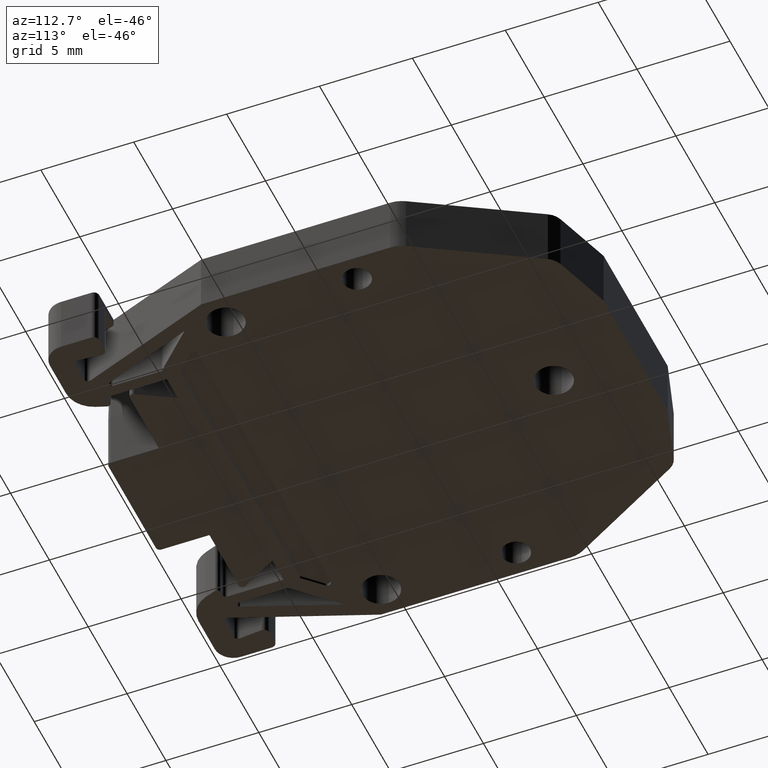
[diagram: clean part render]
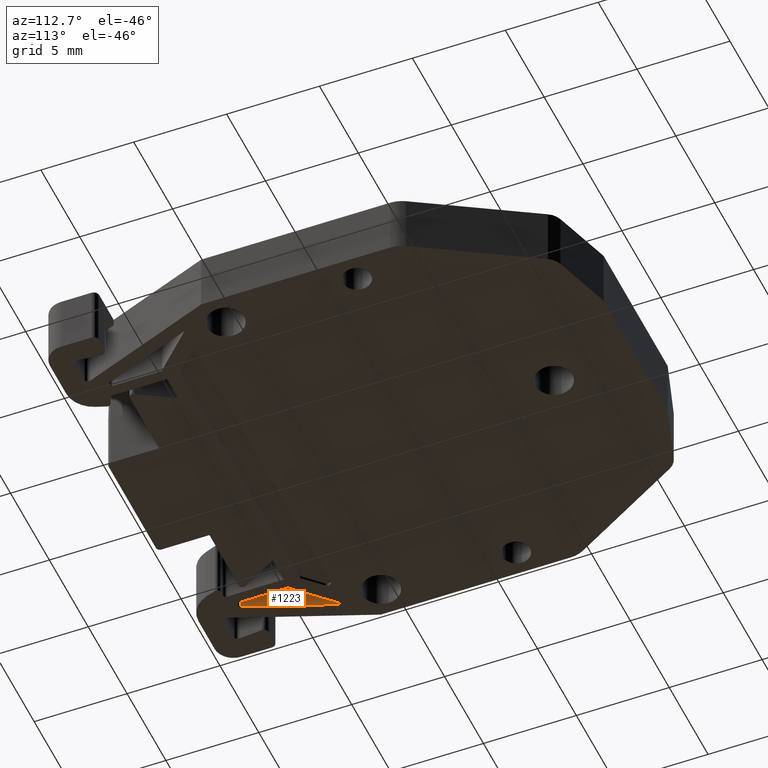
[diagram: same view with one face highlighted and labeled with its STEP entity id]
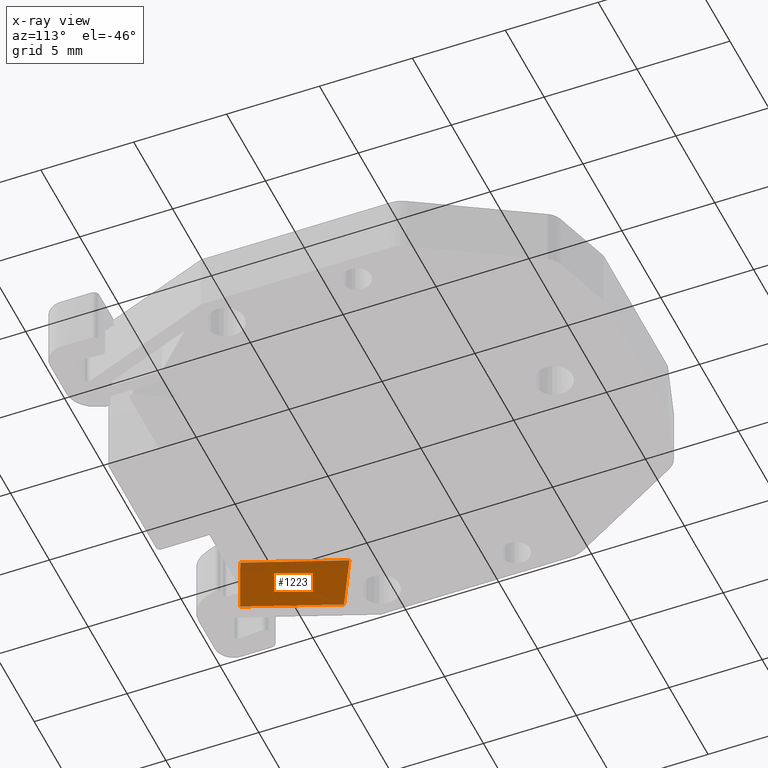
[diagram: x-ray of the same camera — body ghosted, the highlighted face saturated]
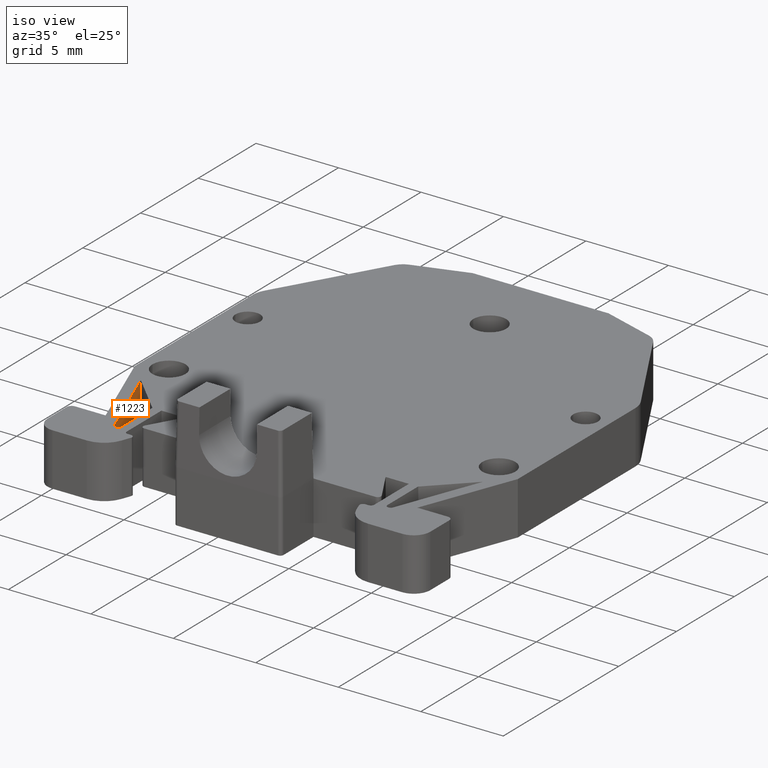
[diagram: same view with one face highlighted and labeled with its STEP entity id]
A machine part, auxiliary view. The second image highlights one B-rep face of the part: STEP entity #1223.
The next image is the same camera in x-ray: the body ghosted, the highlighted face saturated — about 17% of this face is hidden behind the body in this view.
A second angle (iso view) of the same face is appended — the face is thin or edge-on in the first view.
In plain terms, the highlighted planar face has unit normal (0.9334, 0.3585, 0.0175).
Its self-contained STEP definition (entity closure, byte-faithful):
#415 = DIRECTION ( 'NONE',  ( -0.3585440221142559000, 0.9335128195189029700, 0.0000000000000000000 ) ) ;
#422 = FACE_OUTER_BOUND ( 'NONE', #1690, .T. ) ;
#426 = PLANE ( 'NONE',  #1391 ) ;
#427 = CARTESIAN_POINT ( 'NONE',  ( 219.0861178392930200, 472.0378318790151300, 11.63999999999999900 ) ) ;
#428 = DIRECTION ( 'NONE',  ( 0.9333706409949194000, 0.3584894141230409700, 0.01745240643728353900 ) ) ;
#614 = CARTESIAN_POINT ( 'NONE',  ( 222.8875394312365200, 462.2961561982757000, 8.440000000003667700 ) ) ;
#649 = CARTESIAN_POINT ( 'NONE',  ( 222.8353969452330100, 462.2761292888816300, 11.63999999999987300 ) ) ;
#655 = CARTESIAN_POINT ( 'NONE',  ( 221.0368908867095600, 467.1145439949894500, 8.439999999999994200 ) ) ;
#678 = CARTESIAN_POINT ( 'NONE',  ( 220.8904854904031100, 467.3399419978671900, 11.63999999999999500 ) ) ;
#893 = EDGE_CURVE ( 'NONE', #1553, #1585, #3483, .T. ) ;
#991 = EDGE_CURVE ( 'NONE', #1607, #1610, #2801, .T. ) ;
#1074 = EDGE_CURVE ( 'NONE', #1610, #1553, #3029, .T. ) ;
#1083 = EDGE_CURVE ( 'NONE', #1607, #1585, #3073, .T. ) ;
#1223 = ADVANCED_FACE ( 'NONE', ( #422 ), #426, .T. ) ;
#1391 = AXIS2_PLACEMENT_3D ( 'NONE', #427, #428, #415 ) ;
#1553 = VERTEX_POINT ( 'NONE', #614 ) ;
#1585 = VERTEX_POINT ( 'NONE', #655 ) ;
#1607 = VERTEX_POINT ( 'NONE', #678 ) ;
#1610 = VERTEX_POINT ( 'NONE', #649 ) ;
#1690 = EDGE_LOOP ( 'NONE', ( #2077, #2097, #2103, #2128 ) ) ;
#2077 = ORIENTED_EDGE ( 'NONE', *, *, #1074, .T. ) ;
#2097 = ORIENTED_EDGE ( 'NONE', *, *, #893, .T. ) ;
#2103 = ORIENTED_EDGE ( 'NONE', *, *, #1083, .F. ) ;
#2128 = ORIENTED_EDGE ( 'NONE', *, *, #991, .T. ) ;
#2352 = VECTOR ( 'NONE', #3089, 1000.000000000000100 ) ;
#2413 = VECTOR ( 'NONE', #3501, 1000.000000000000100 ) ;
#2427 = VECTOR ( 'NONE', #3024, 1000.000000000000100 ) ;
#2539 = VECTOR ( 'NONE', #2777, 1000.000000000000100 ) ;
#2776 = CARTESIAN_POINT ( 'NONE',  ( 220.8904854904029900, 467.3399419978670700, 11.63999999999999900 ) ) ;
#2777 = DIRECTION ( 'NONE',  ( 0.3585440221142269200, -0.9335128195189141800, 0.0000000000000000000 ) ) ;
#2801 = LINE ( 'NONE', #2776, #2539 ) ;
#3022 = CARTESIAN_POINT ( 'NONE',  ( 222.8353969452334700, 462.2761292888811200, 11.63999999999999900 ) ) ;
#3024 = DIRECTION ( 'NONE',  ( 0.01629204514065840700, 0.006257455999596371300, -0.9998476951563911600 ) ) ;
#3029 = LINE ( 'NONE', #3022, #2427 ) ;
#3073 = LINE ( 'NONE', #3097, #2352 ) ;
#3089 = DIRECTION ( 'NONE',  ( 0.04559115595922280000, -0.07018973180878666800, -0.9964912684248229400 ) ) ;
#3097 = CARTESIAN_POINT ( 'NONE',  ( 220.8904854904032500, 467.3399419978673000, 11.63999999999999200 ) ) ;
#3483 = LINE ( 'NONE', #3484, #2413 ) ;
#3484 = CARTESIAN_POINT ( 'NONE',  ( 219.1382603252963000, 472.0578587884091300, 8.440000000000006600 ) ) ;
#3501 = DIRECTION ( 'NONE',  ( -0.3585440221142559000, 0.9335128195189029700, 0.0000000000000000000 ) ) ;